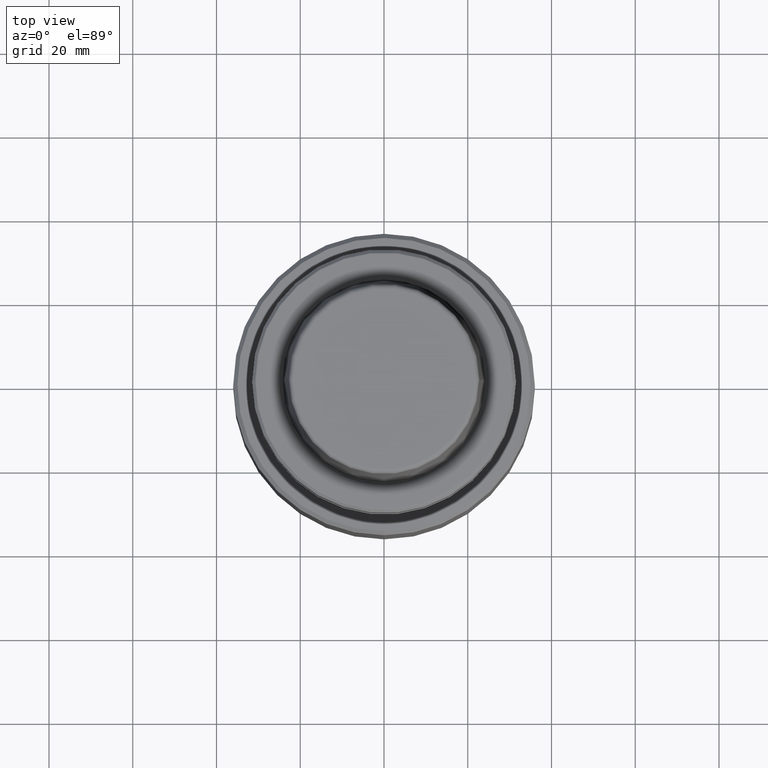
[diagram: clean part render]
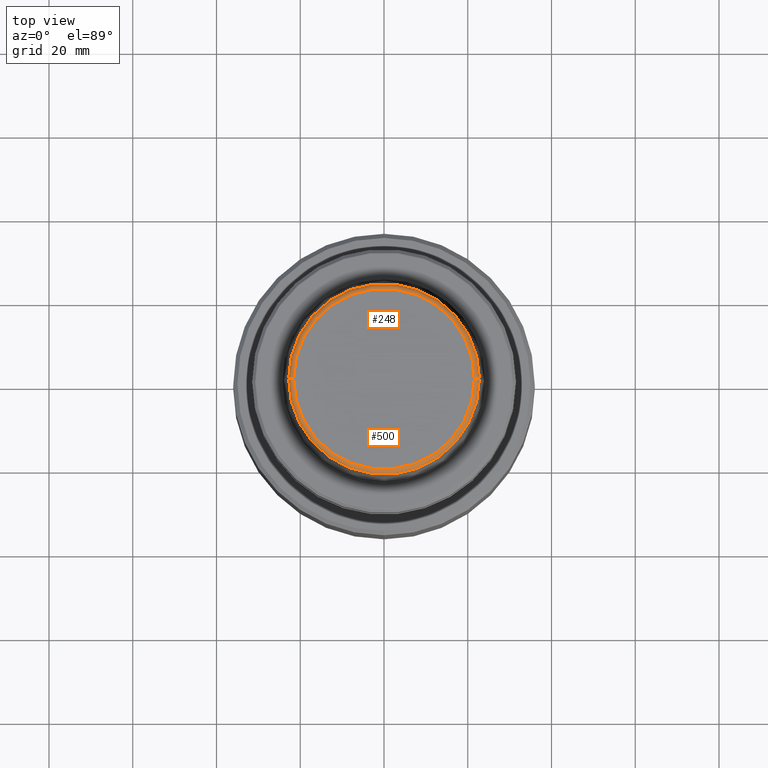
[diagram: same view with one multi-face feature highlighted, each face labeled with its STEP entity id]
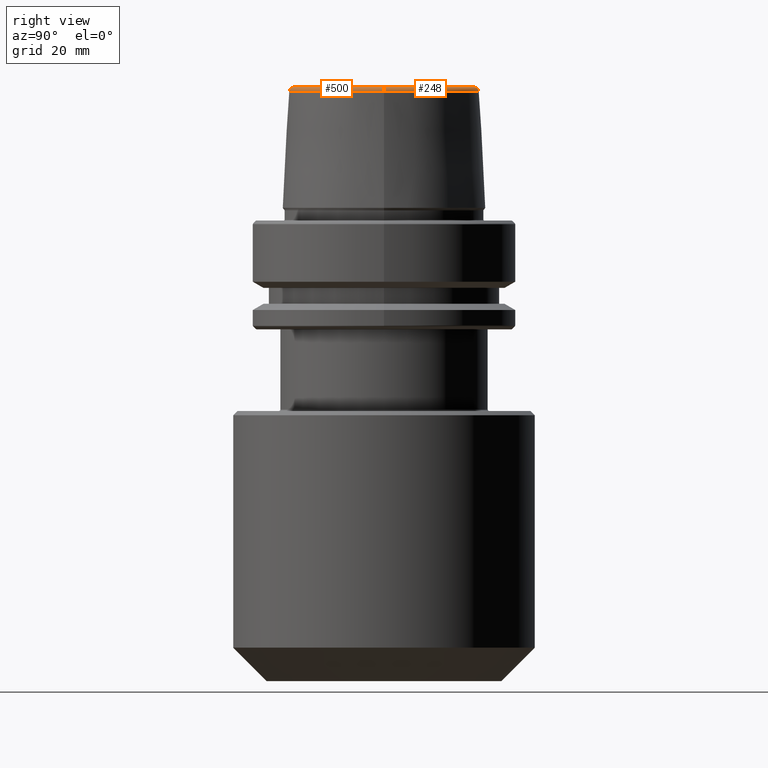
[diagram: same view with one multi-face feature highlighted, each face labeled with its STEP entity id]
A machine part, top view. The highlighted faces form ONE feature: a constant-radius fillet chain: 2 tangent blend faces with common blend radius 1.2 mm. The faces share edges in the B-rep.
A second angle (right view) of the same feature is appended — it is thin or edge-on in the first view.
Their STEP definitions:
[1] entity #500 (Torus):
#18 = CARTESIAN_POINT ( 'NONE',  ( 0.0000000000000000000, 0.0000000000000000000, 30.76004333261571900 ) ) ;
#86 = AXIS2_PLACEMENT_3D ( 'NONE', #321, #205, #825 ) ;
#87 = CIRCLE ( 'NONE', #699, 21.58108272732117100 ) ;
#90 = EDGE_CURVE ( 'NONE', #428, #1207, #623, .T. ) ;
#169 = EDGE_CURVE ( 'NONE', #1124, #571, #87, .T. ) ;
#205 = DIRECTION ( 'NONE',  ( 0.0000000000000000000, -1.000000000000000000, 0.0000000000000000000 ) ) ;
#220 = AXIS2_PLACEMENT_3D ( 'NONE', #521, #1145, #1260 ) ;
#321 = CARTESIAN_POINT ( 'NONE',  ( 21.58108272732117100, 0.0000000000000000000, 30.69999999999999200 ) ) ;
#350 = DIRECTION ( 'NONE',  ( -0.0000000000000000000, -0.0000000000000000000, 1.000000000000000000 ) ) ;
#358 = CARTESIAN_POINT ( 'NONE',  ( 21.58108272732117100, 0.0000000000000000000, 31.89999999999999900 ) ) ;
#362 = CIRCLE ( 'NONE', #220, 1.200000000000003100 ) ;
#391 = CARTESIAN_POINT ( 'NONE',  ( 0.0000000000000000000, 0.0000000000000000000, 30.69999999999999200 ) ) ;
#409 = EDGE_CURVE ( 'NONE', #428, #1124, #362, .T. ) ;
#428 = VERTEX_POINT ( 'NONE', #624 ) ;
#444 = CARTESIAN_POINT ( 'NONE',  ( 22.77957961851797100, 2.874852597157249900E-015, 30.76004333261571900 ) ) ;
#500 = ADVANCED_FACE ( 'NONE', ( #573 ), #1120, .T. ) ;
#512 = DIRECTION ( 'NONE',  ( 1.000000000000000000, 0.0000000000000000000, 0.0000000000000000000 ) ) ;
#521 = CARTESIAN_POINT ( 'NONE',  ( -21.58108272732117100, 2.642920388414810300E-015, 30.69999999999999200 ) ) ;
#571 = VERTEX_POINT ( 'NONE', #358 ) ;
#573 = FACE_OUTER_BOUND ( 'NONE', #800, .T. ) ;
#623 = CIRCLE ( 'NONE', #1373, 22.77957961851797100 ) ;
#624 = CARTESIAN_POINT ( 'NONE',  ( -22.77957961851797100, 0.0000000000000000000, 30.76004333261571900 ) ) ;
#699 = AXIS2_PLACEMENT_3D ( 'NONE', #1134, #1353, #512 ) ;
#711 = ORIENTED_EDGE ( 'NONE', *, *, #409, .F. ) ;
#783 = DIRECTION ( 'NONE',  ( 1.000000000000000000, 0.0000000000000000000, 0.0000000000000000000 ) ) ;
#800 = EDGE_LOOP ( 'NONE', ( #711, #1073, #821, #883 ) ) ;
#811 = DIRECTION ( 'NONE',  ( 1.000000000000000000, 0.0000000000000000000, 0.0000000000000000000 ) ) ;
#821 = ORIENTED_EDGE ( 'NONE', *, *, #1323, .T. ) ;
#825 = DIRECTION ( 'NONE',  ( 0.0000000000000000000, 0.0000000000000000000, -1.000000000000000000 ) ) ;
#883 = ORIENTED_EDGE ( 'NONE', *, *, #169, .F. ) ;
#914 = DIRECTION ( 'NONE',  ( -0.0000000000000000000, -0.0000000000000000000, 1.000000000000000000 ) ) ;
#962 = CIRCLE ( 'NONE', #86, 1.200000000000003100 ) ;
#1049 = AXIS2_PLACEMENT_3D ( 'NONE', #391, #914, #811 ) ;
#1073 = ORIENTED_EDGE ( 'NONE', *, *, #90, .T. ) ;
#1120 = TOROIDAL_SURFACE ( 'NONE', #1049, 21.58108272732117100, 1.200000000000003100 ) ;
#1124 = VERTEX_POINT ( 'NONE', #1181 ) ;
#1134 = CARTESIAN_POINT ( 'NONE',  ( 0.0000000000000000000, 0.0000000000000000000, 31.89999999999999900 ) ) ;
#1145 = DIRECTION ( 'NONE',  ( 1.224646799147353200E-016, 1.000000000000000000, 0.0000000000000000000 ) ) ;
#1181 = CARTESIAN_POINT ( 'NONE',  ( -21.58108272732117100, 2.716307157494421400E-015, 31.89999999999999900 ) ) ;
#1207 = VERTEX_POINT ( 'NONE', #444 ) ;
#1260 = DIRECTION ( 'NONE',  ( -1.000000000000000000, 1.224646799147353200E-016, 0.0000000000000000000 ) ) ;
#1323 = EDGE_CURVE ( 'NONE', #1207, #571, #962, .T. ) ;
#1353 = DIRECTION ( 'NONE',  ( -0.0000000000000000000, -0.0000000000000000000, 1.000000000000000000 ) ) ;
#1373 = AXIS2_PLACEMENT_3D ( 'NONE', #18, #350, #783 ) ;
[2] entity #248 (Torus):
#60 = ORIENTED_EDGE ( 'NONE', *, *, #1323, .F. ) ;
#78 = EDGE_CURVE ( 'NONE', #571, #1124, #728, .T. ) ;
#86 = AXIS2_PLACEMENT_3D ( 'NONE', #321, #205, #825 ) ;
#191 = EDGE_LOOP ( 'NONE', ( #601, #984, #735, #60 ) ) ;
#205 = DIRECTION ( 'NONE',  ( 0.0000000000000000000, -1.000000000000000000, 0.0000000000000000000 ) ) ;
#220 = AXIS2_PLACEMENT_3D ( 'NONE', #521, #1145, #1260 ) ;
#248 = ADVANCED_FACE ( 'NONE', ( #924 ), #957, .T. ) ;
#305 = DIRECTION ( 'NONE',  ( 1.000000000000000000, 0.0000000000000000000, 0.0000000000000000000 ) ) ;
#321 = CARTESIAN_POINT ( 'NONE',  ( 21.58108272732117100, 0.0000000000000000000, 30.69999999999999200 ) ) ;
#334 = CARTESIAN_POINT ( 'NONE',  ( 0.0000000000000000000, 0.0000000000000000000, 30.69999999999999200 ) ) ;
#358 = CARTESIAN_POINT ( 'NONE',  ( 21.58108272732117100, 0.0000000000000000000, 31.89999999999999900 ) ) ;
#362 = CIRCLE ( 'NONE', #220, 1.200000000000003100 ) ;
#373 = AXIS2_PLACEMENT_3D ( 'NONE', #334, #552, #1031 ) ;
#376 = EDGE_CURVE ( 'NONE', #1207, #428, #1177, .T. ) ;
#409 = EDGE_CURVE ( 'NONE', #428, #1124, #362, .T. ) ;
#428 = VERTEX_POINT ( 'NONE', #624 ) ;
#444 = CARTESIAN_POINT ( 'NONE',  ( 22.77957961851797100, 2.874852597157249900E-015, 30.76004333261571900 ) ) ;
#521 = CARTESIAN_POINT ( 'NONE',  ( -21.58108272732117100, 2.642920388414810300E-015, 30.69999999999999200 ) ) ;
#552 = DIRECTION ( 'NONE',  ( -0.0000000000000000000, -0.0000000000000000000, 1.000000000000000000 ) ) ;
#560 = DIRECTION ( 'NONE',  ( -0.0000000000000000000, -0.0000000000000000000, 1.000000000000000000 ) ) ;
#571 = VERTEX_POINT ( 'NONE', #358 ) ;
#601 = ORIENTED_EDGE ( 'NONE', *, *, #376, .T. ) ;
#624 = CARTESIAN_POINT ( 'NONE',  ( -22.77957961851797100, 0.0000000000000000000, 30.76004333261571900 ) ) ;
#728 = CIRCLE ( 'NONE', #1067, 21.58108272732117100 ) ;
#735 = ORIENTED_EDGE ( 'NONE', *, *, #78, .F. ) ;
#750 = AXIS2_PLACEMENT_3D ( 'NONE', #1040, #819, #305 ) ;
#819 = DIRECTION ( 'NONE',  ( -0.0000000000000000000, -0.0000000000000000000, 1.000000000000000000 ) ) ;
#825 = DIRECTION ( 'NONE',  ( 0.0000000000000000000, 0.0000000000000000000, -1.000000000000000000 ) ) ;
#894 = CARTESIAN_POINT ( 'NONE',  ( 0.0000000000000000000, 0.0000000000000000000, 31.89999999999999900 ) ) ;
#924 = FACE_OUTER_BOUND ( 'NONE', #191, .T. ) ;
#957 = TOROIDAL_SURFACE ( 'NONE', #373, 21.58108272732117100, 1.200000000000003100 ) ;
#962 = CIRCLE ( 'NONE', #86, 1.200000000000003100 ) ;
#984 = ORIENTED_EDGE ( 'NONE', *, *, #409, .T. ) ;
#1008 = DIRECTION ( 'NONE',  ( 1.000000000000000000, 0.0000000000000000000, 0.0000000000000000000 ) ) ;
#1031 = DIRECTION ( 'NONE',  ( 1.000000000000000000, 0.0000000000000000000, 0.0000000000000000000 ) ) ;
#1040 = CARTESIAN_POINT ( 'NONE',  ( 0.0000000000000000000, 0.0000000000000000000, 30.76004333261571900 ) ) ;
#1067 = AXIS2_PLACEMENT_3D ( 'NONE', #894, #560, #1008 ) ;
#1124 = VERTEX_POINT ( 'NONE', #1181 ) ;
#1145 = DIRECTION ( 'NONE',  ( 1.224646799147353200E-016, 1.000000000000000000, 0.0000000000000000000 ) ) ;
#1177 = CIRCLE ( 'NONE', #750, 22.77957961851797100 ) ;
#1181 = CARTESIAN_POINT ( 'NONE',  ( -21.58108272732117100, 2.716307157494421400E-015, 31.89999999999999900 ) ) ;
#1207 = VERTEX_POINT ( 'NONE', #444 ) ;
#1260 = DIRECTION ( 'NONE',  ( -1.000000000000000000, 1.224646799147353200E-016, 0.0000000000000000000 ) ) ;
#1323 = EDGE_CURVE ( 'NONE', #1207, #571, #962, .T. ) ;